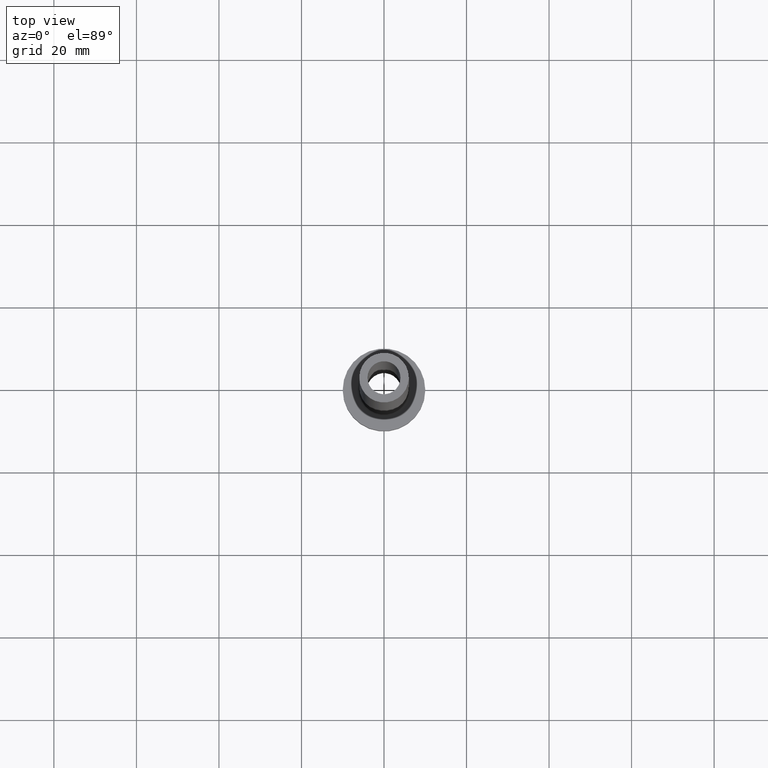
[diagram: clean part render]
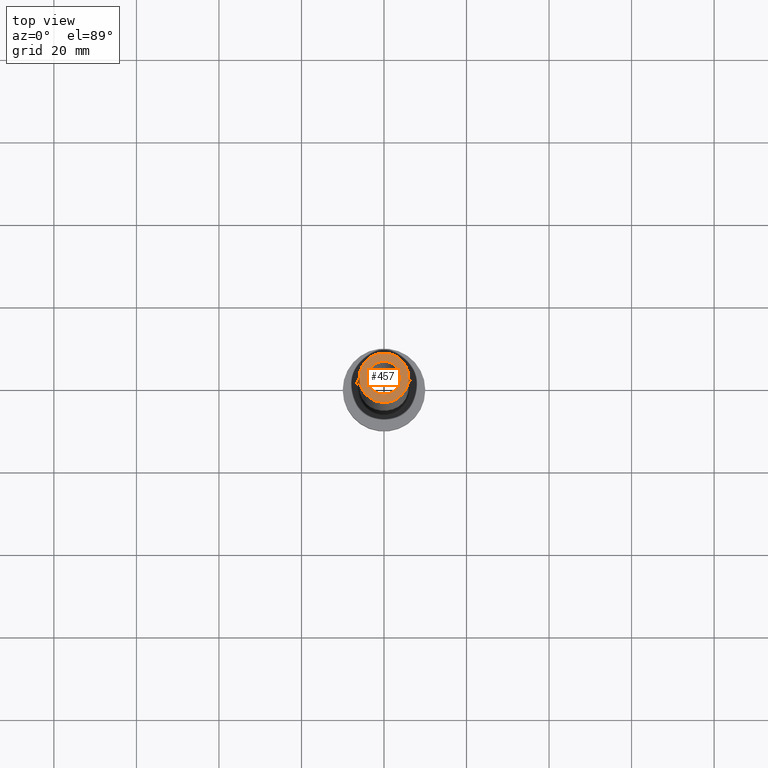
[diagram: same view with one face highlighted and labeled with its STEP entity id]
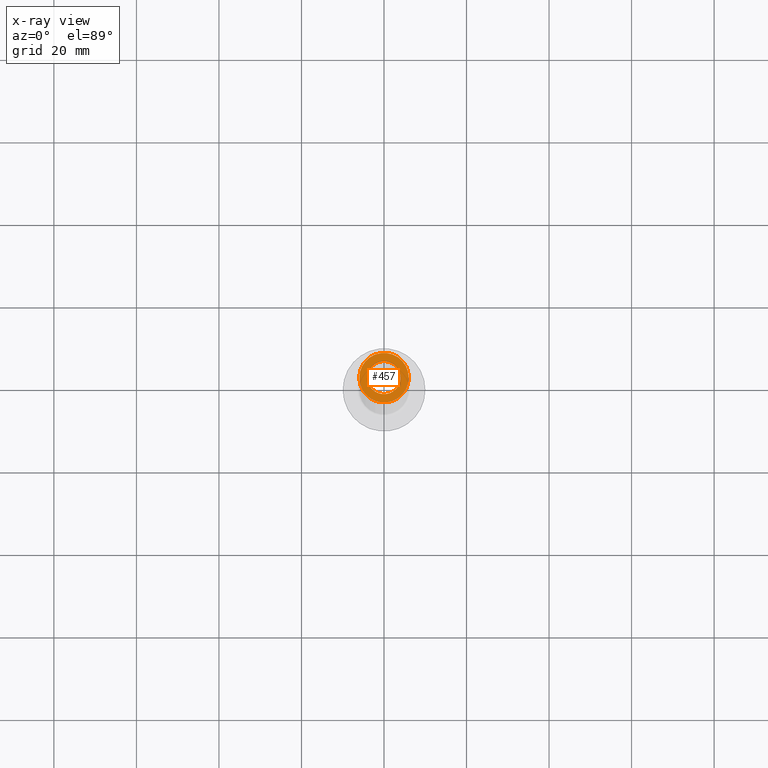
[diagram: x-ray of the same camera — body ghosted, the highlighted face saturated]
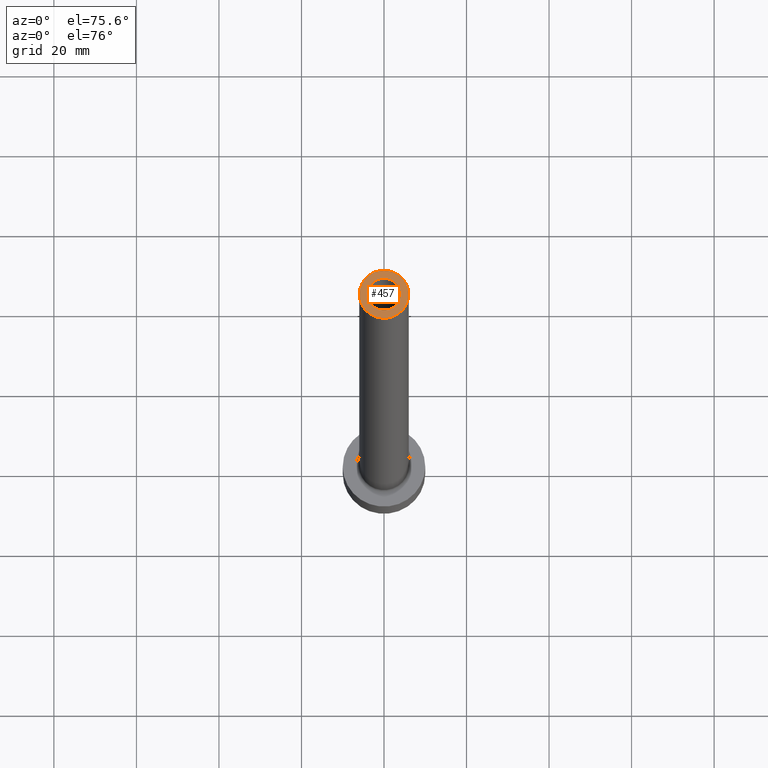
[diagram: same view with one face highlighted and labeled with its STEP entity id]
A machine part, top view. The second image highlights one B-rep face of the part: STEP entity #457.
The next image is the same camera in x-ray: the body ghosted, the highlighted face saturated — about 0% of this face is hidden behind the body in this view.
A second angle (auxiliary view) of the same face is appended — the face is thin or edge-on in the first view.
In plain terms, the highlighted planar face has unit normal (0, 0, 1).
Its self-contained STEP definition (entity closure, byte-faithful):
#11 = CARTESIAN_POINT ( 'NONE',  ( 6.000000000000000888, 7.347880794884119736E-16, 175.0000000000000284 ) ) ;
#13 = DIRECTION ( 'NONE',  ( 1.000000000000000000, 0.000000000000000000, 0.000000000000000000 ) ) ;
#29 = EDGE_CURVE ( 'NONE', #204, #327, #374, .T. ) ;
#33 = EDGE_LOOP ( 'NONE', ( #279, #129 ) ) ;
#41 = DIRECTION ( 'NONE',  ( 0.000000000000000000, 0.000000000000000000, 1.000000000000000000 ) ) ;
#53 = CARTESIAN_POINT ( 'NONE',  ( 0.000000000000000000, 0.000000000000000000, 175.0000000000000284 ) ) ;
#54 = DIRECTION ( 'NONE',  ( 1.000000000000000000, 0.000000000000000000, 0.000000000000000000 ) ) ;
#70 = CIRCLE ( 'NONE', #397, 6.000000000000000888 ) ;
#73 = CIRCLE ( 'NONE', #362, 4.000000000000000000 ) ;
#88 = EDGE_CURVE ( 'NONE', #327, #204, #73, .T. ) ;
#107 = EDGE_LOOP ( 'NONE', ( #167, #351 ) ) ;
#129 = ORIENTED_EDGE ( 'NONE', *, *, #157, .T. ) ;
#140 = VERTEX_POINT ( 'NONE', #11 ) ;
#157 = EDGE_CURVE ( 'NONE', #140, #288, #70, .T. ) ;
#167 = ORIENTED_EDGE ( 'NONE', *, *, #29, .F. ) ;
#204 = VERTEX_POINT ( 'NONE', #443 ) ;
#205 = DIRECTION ( 'NONE',  ( 0.000000000000000000, 0.000000000000000000, 1.000000000000000000 ) ) ;
#206 = AXIS2_PLACEMENT_3D ( 'NONE', #337, #261, #54 ) ;
#208 = AXIS2_PLACEMENT_3D ( 'NONE', #334, #41, #258 ) ;
#209 = CARTESIAN_POINT ( 'NONE',  ( 0.000000000000000000, 0.000000000000000000, 175.0000000000000284 ) ) ;
#240 = PLANE ( 'NONE',  #345 ) ;
#255 = CARTESIAN_POINT ( 'NONE',  ( 4.000000000000000000, 4.898587196589412829E-16, 175.0000000000000284 ) ) ;
#258 = DIRECTION ( 'NONE',  ( 1.000000000000000000, 0.000000000000000000, 0.000000000000000000 ) ) ;
#260 = DIRECTION ( 'NONE',  ( 1.000000000000000000, 0.000000000000000000, -0.000000000000000000 ) ) ;
#261 = DIRECTION ( 'NONE',  ( 0.000000000000000000, 0.000000000000000000, 1.000000000000000000 ) ) ;
#262 = DIRECTION ( 'NONE',  ( 0.000000000000000000, 0.000000000000000000, 1.000000000000000000 ) ) ;
#279 = ORIENTED_EDGE ( 'NONE', *, *, #421, .T. ) ;
#288 = VERTEX_POINT ( 'NONE', #317 ) ;
#296 = CIRCLE ( 'NONE', #206, 6.000000000000000888 ) ;
#304 = FACE_BOUND ( 'NONE', #107, .T. ) ;
#317 = CARTESIAN_POINT ( 'NONE',  ( -6.000000000000000888, 0.000000000000000000, 175.0000000000000284 ) ) ;
#319 = CARTESIAN_POINT ( 'NONE',  ( 0.000000000000000000, 0.000000000000000000, 175.0000000000000284 ) ) ;
#327 = VERTEX_POINT ( 'NONE', #255 ) ;
#334 = CARTESIAN_POINT ( 'NONE',  ( 0.000000000000000000, 0.000000000000000000, 175.0000000000000284 ) ) ;
#337 = CARTESIAN_POINT ( 'NONE',  ( 0.000000000000000000, 0.000000000000000000, 175.0000000000000284 ) ) ;
#345 = AXIS2_PLACEMENT_3D ( 'NONE', #319, #386, #260 ) ;
#351 = ORIENTED_EDGE ( 'NONE', *, *, #88, .F. ) ;
#362 = AXIS2_PLACEMENT_3D ( 'NONE', #209, #205, #452 ) ;
#374 = CIRCLE ( 'NONE', #208, 4.000000000000000000 ) ;
#386 = DIRECTION ( 'NONE',  ( 0.000000000000000000, 0.000000000000000000, 1.000000000000000000 ) ) ;
#397 = AXIS2_PLACEMENT_3D ( 'NONE', #53, #262, #13 ) ;
#412 = FACE_OUTER_BOUND ( 'NONE', #33, .T. ) ;
#421 = EDGE_CURVE ( 'NONE', #288, #140, #296, .T. ) ;
#443 = CARTESIAN_POINT ( 'NONE',  ( -4.000000000000000000, 0.000000000000000000, 175.0000000000000284 ) ) ;
#452 = DIRECTION ( 'NONE',  ( 1.000000000000000000, 0.000000000000000000, 0.000000000000000000 ) ) ;
#457 = ADVANCED_FACE ( 'NONE', ( #304, #412 ), #240, .T. ) ;